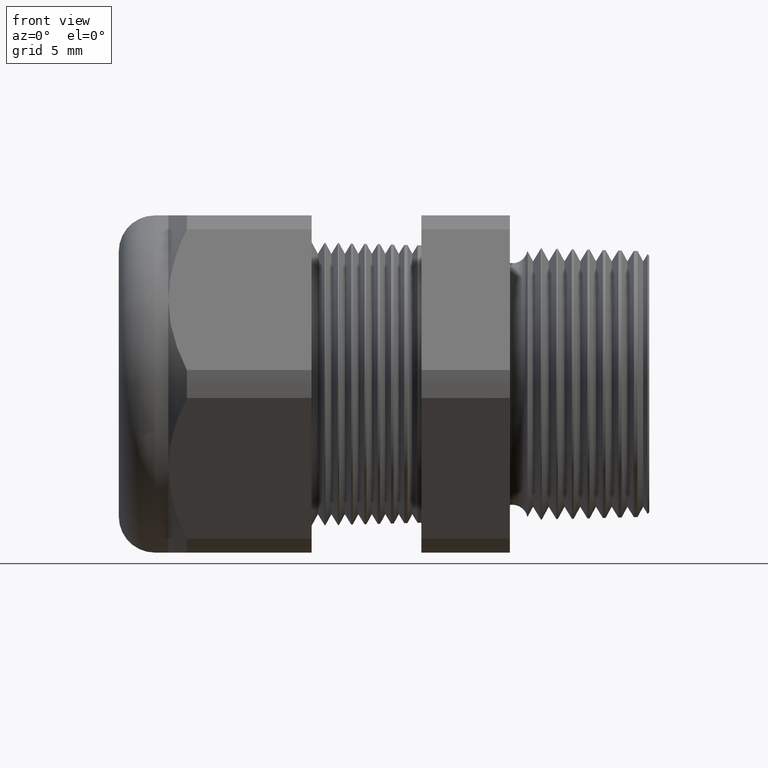
[diagram: clean part render]
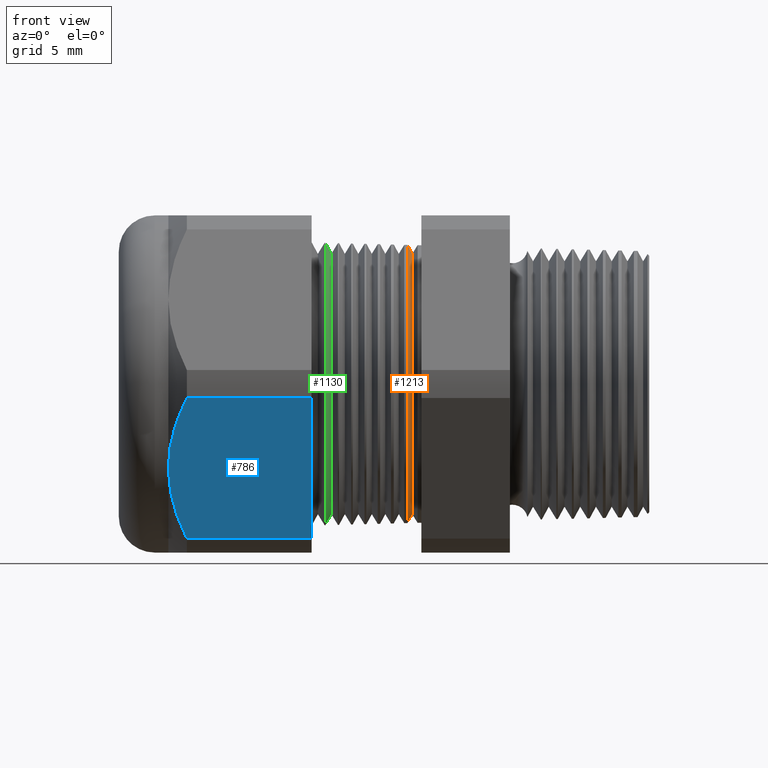
[diagram: same view with three faces highlighted in distinct colors, each labeled with its STEP entity id]
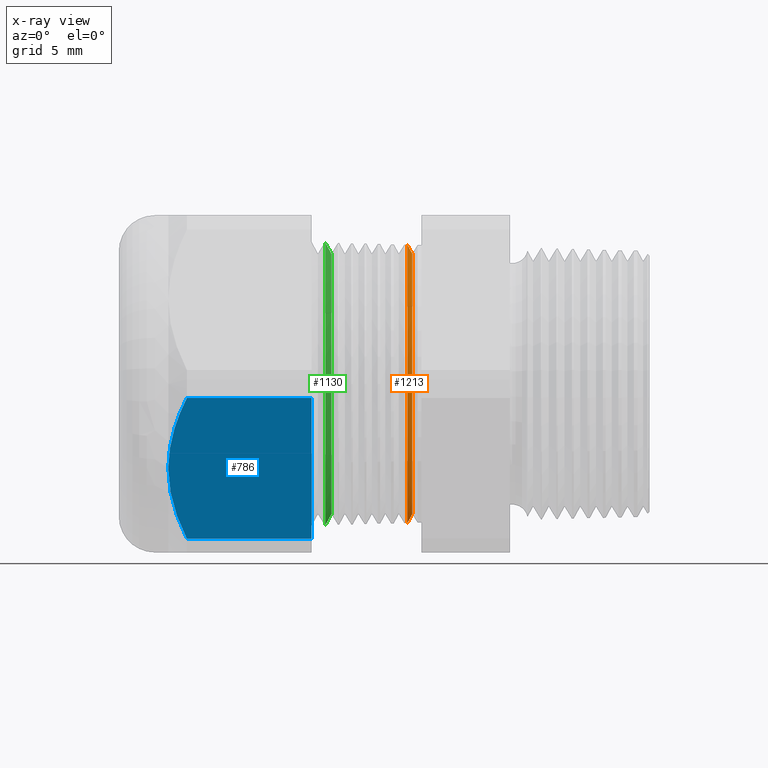
[diagram: x-ray of the same camera — body ghosted, the three highlighted faces saturated]
A machine part, front view with three faces highlighted in distinct colors.
The next image is the same camera in x-ray (body ghosted, the three faces saturated) — at least one of them is partly hidden behind the body in this view.
Their STEP definitions:

[orange] entity #1213 — the highlighted conical surface has half-angle 61.5 deg.
#178 = VERTEX_POINT ( 'NONE', #1792 ) ;
#187 = EDGE_CURVE ( 'NONE', #731, #178, #1836, .T. ) ;
#378 = EDGE_CURVE ( 'NONE', #178, #621, #2168, .T. ) ;
#621 = VERTEX_POINT ( 'NONE', #2649 ) ;
#622 = EDGE_CURVE ( 'NONE', #730, #621, #2648, .T. ) ;
#730 = VERTEX_POINT ( 'NONE', #2835 ) ;
#731 = VERTEX_POINT ( 'NONE', #2834 ) ;
#1195 = ORIENTED_EDGE ( 'NONE', *, *, #378, .T. ) ;
#1213 = ADVANCED_FACE ( 'NONE', ( #3613 ), #3673, .T. ) ;
#1214 = EDGE_LOOP ( 'NONE', ( #1215, #1216, #1218, #1195 ) ) ;
#1215 = ORIENTED_EDGE ( 'NONE', *, *, #622, .F. ) ;
#1216 = ORIENTED_EDGE ( 'NONE', *, *, #1217, .F. ) ;
#1217 = EDGE_CURVE ( 'NONE', #731, #730, #3667, .T. ) ;
#1218 = ORIENTED_EDGE ( 'NONE', *, *, #187, .T. ) ;
#1792 = CARTESIAN_POINT ( 'NONE',  ( -0.5378373418484120300, 0.0000000000000000000, 0.3094216445542644600 ) ) ;
#1833 = DIRECTION ( 'NONE',  ( -0.4771587602596195100, 0.0000000000000000000, 0.8788171126619593900 ) ) ;
#1834 = VECTOR ( 'NONE', #1833, 39.37007874015748100 ) ;
#1835 = CARTESIAN_POINT ( 'NONE',  ( -0.5408661417322834200, 0.0000000000000000000, 0.3150000000000000000 ) ) ;
#1836 = LINE ( 'NONE', #1835, #1834 ) ;
#2164 = DIRECTION ( 'NONE',  ( 0.0000000000000000000, 0.0000000000000000000, 1.000000000000000000 ) ) ;
#2165 = DIRECTION ( 'NONE',  ( 1.000000000000000000, 0.0000000000000000000, 0.0000000000000000000 ) ) ;
#2166 = CARTESIAN_POINT ( 'NONE',  ( -0.5378373418484120300, 0.0000000000000000000, 0.0000000000000000000 ) ) ;
#2167 = AXIS2_PLACEMENT_3D ( 'NONE', #2166, #2165, #2164 ) ;
#2168 = CIRCLE ( 'NONE', #2167, 0.3094216445542644600 ) ;
#2645 = DIRECTION ( 'NONE',  ( -0.4771587602596195100, 1.076240564057387400E-016, -0.8788171126619593900 ) ) ;
#2646 = VECTOR ( 'NONE', #2645, 39.37007874015748100 ) ;
#2647 = CARTESIAN_POINT ( 'NONE',  ( -0.5408661417322834200, 3.857637417314162700E-017, -0.3150000000000000000 ) ) ;
#2648 = LINE ( 'NONE', #2647, #2646 ) ;
#2649 = CARTESIAN_POINT ( 'NONE',  ( -0.5378373418484120300, 3.790446904611246800E-017, -0.3094216445542644600 ) ) ;
#2834 = CARTESIAN_POINT ( 'NONE',  ( -0.5270917547981793800, 0.0000000000000000000, 0.2896307351718083200 ) ) ;
#2835 = CARTESIAN_POINT ( 'NONE',  ( -0.5270917547981793800, 3.668137896765698900E-017, -0.2896307351718083200 ) ) ;
#3613 = FACE_OUTER_BOUND ( 'NONE', #1214, .T. ) ;
#3664 = DIRECTION ( 'NONE',  ( 0.0000000000000000000, 0.0000000000000000000, -1.000000000000000000 ) ) ;
#3665 = DIRECTION ( 'NONE',  ( 1.000000000000000000, 0.0000000000000000000, 0.0000000000000000000 ) ) ;
#3666 = AXIS2_PLACEMENT_3D ( 'NONE', #3672, #3665, #3664 ) ;
#3667 = CIRCLE ( 'NONE', #3666, 0.2896307351718083200 ) ;
#3668 = DIRECTION ( 'NONE',  ( 0.0000000000000000000, 0.0000000000000000000, 1.000000000000000000 ) ) ;
#3669 = DIRECTION ( 'NONE',  ( -1.000000000000000000, 0.0000000000000000000, 0.0000000000000000000 ) ) ;
#3670 = CARTESIAN_POINT ( 'NONE',  ( -0.5408661417322834200, 0.0000000000000000000, 0.0000000000000000000 ) ) ;
#3671 = AXIS2_PLACEMENT_3D ( 'NONE', #3670, #3669, #3668 ) ;
#3672 = CARTESIAN_POINT ( 'NONE',  ( -0.5270917547981793800, 0.0000000000000000000, 0.0000000000000000000 ) ) ;
#3673 = CONICAL_SURFACE ( 'NONE', #3671, 0.3150000000000000000, 1.073377489976500100 ) ;

[blue] entity #786 — the highlighted planar face has unit normal (0, -0.866, -0.5).
#761 = ORIENTED_EDGE ( 'NONE', *, *, #762, .T. ) ;
#762 = EDGE_CURVE ( 'NONE', #780, #763, #2940, .T. ) ;
#763 = VERTEX_POINT ( 'NONE', #2939 ) ;
#764 = ORIENTED_EDGE ( 'NONE', *, *, #765, .T. ) ;
#765 = EDGE_CURVE ( 'NONE', #763, #766, #2930, .T. ) ;
#766 = VERTEX_POINT ( 'NONE', #2929 ) ;
#767 = ORIENTED_EDGE ( 'NONE', *, *, #768, .F. ) ;
#768 = EDGE_CURVE ( 'NONE', #769, #766, #2922, .T. ) ;
#769 = VERTEX_POINT ( 'NONE', #2918 ) ;
#770 = ORIENTED_EDGE ( 'NONE', *, *, #771, .F. ) ;
#771 = EDGE_CURVE ( 'NONE', #783, #769, #2917, .T. ) ;
#780 = VERTEX_POINT ( 'NONE', #2952 ) ;
#782 = EDGE_CURVE ( 'NONE', #783, #780, #2951, .T. ) ;
#783 = VERTEX_POINT ( 'NONE', #2947 ) ;
#786 = ADVANCED_FACE ( 'NONE', ( #2941 ), #3002, .T. ) ;
#787 = EDGE_LOOP ( 'NONE', ( #788, #761, #764, #767, #770 ) ) ;
#788 = ORIENTED_EDGE ( 'NONE', *, *, #782, .T. ) ;
#2914 = DIRECTION ( 'NONE',  ( 0.0000000000000000000, 0.5000000000000002200, -0.8660254037844384900 ) ) ;
#2915 = VECTOR ( 'NONE', #2914, 39.37007874015748900 ) ;
#2916 = CARTESIAN_POINT ( 'NONE',  ( -0.7508661417322833900, -0.2460095264191644600, -0.3238990010960492400 ) ) ;
#2917 = LINE ( 'NONE', #2916, #2915 ) ;
#2918 = CARTESIAN_POINT ( 'NONE',  ( -0.7508661417322833900, -0.2344281053908202100, -0.3439586107409880500 ) ) ;
#2919 = DIRECTION ( 'NONE',  ( -1.000000000000000000, 0.0000000000000000000, 0.0000000000000000000 ) ) ;
#2920 = VECTOR ( 'NONE', #2919, 39.37007874015748100 ) ;
#2921 = CARTESIAN_POINT ( 'NONE',  ( 0.0000000000000000000, -0.2344281053908202100, -0.3439586107409880500 ) ) ;
#2922 = LINE ( 'NONE', #2921, #2920 ) ;
#2923 = CARTESIAN_POINT ( 'NONE',  ( -1.028513779527559200, -0.2344281053908201800, -0.3439586107409879900 ) ) ;
#2924 = CARTESIAN_POINT ( 'NONE',  ( -1.041003202145915500, -0.2488160174420975000, -0.3190380160533434200 ) ) ;
#2925 = CARTESIAN_POINT ( 'NONE',  ( -1.051459219999150200, -0.2636869420682234100, -0.2932808190453660100 ) ) ;
#2926 = CARTESIAN_POINT ( 'NONE',  ( -1.065817769005222800, -0.2938118100972367800, -0.2411030170478076800 ) ) ;
#2927 = CARTESIAN_POINT ( 'NONE',  ( -1.069763779527558500, -0.3091297520026593500, -0.2145715634002272300 ) ) ;
#2928 = CARTESIAN_POINT ( 'NONE',  ( -1.069763779527559200, -0.3247595264191645600, -0.1875000000000001900 ) ) ;
#2929 = CARTESIAN_POINT ( 'NONE',  ( -1.028513779527559200, -0.2344281053908201800, -0.3439586107409879900 ) ) ;
#2930 = B_SPLINE_CURVE_WITH_KNOTS ( 'NONE', 3,
 ( #2928, #2927, #2926, #2925, #2924, #2923 ),
 .UNSPECIFIED., .F., .F.,
 ( 4, 2, 4 ),
 ( 0.004709976344604660200, 0.007063225540252129700, 0.009416474735899599300 ),
 .UNSPECIFIED. ) ;
#2931 = CARTESIAN_POINT ( 'NONE',  ( -1.069763779527559200, -0.3247595264191645600, -0.1875000000000001900 ) ) ;
#2932 = CARTESIAN_POINT ( 'NONE',  ( -1.069763779527559000, -0.3325797762507456400, -0.1739549299638197500 ) ) ;
#2933 = CARTESIAN_POINT ( 'NONE',  ( -1.068759730589041500, -0.3404835130999904200, -0.1602652561712736600 ) ) ;
#2934 = CARTESIAN_POINT ( 'NONE',  ( -1.064926254644834400, -0.3559303281390046000, -0.1335105877085819800 ) ) ;
#2935 = CARTESIAN_POINT ( 'NONE',  ( -1.062104445229484800, -0.3635409529853223500, -0.1203285987974131200 ) ) ;
#2936 = CARTESIAN_POINT ( 'NONE',  ( -1.051298346633054100, -0.3860811521420284800, -0.08128782864527751800 ) ) ;
#2937 = CARTESIAN_POINT ( 'NONE',  ( -1.040987746498826900, -0.4007208404219565500, -0.05593114473747132200 ) ) ;
#2938 = CARTESIAN_POINT ( 'NONE',  ( -1.028513779527559200, -0.4150909474475088000, -0.03104138925901237700 ) ) ;
#2939 = CARTESIAN_POINT ( 'NONE',  ( -1.069763779527559200, -0.3247595264191645600, -0.1875000000000001900 ) ) ;
#2940 = B_SPLINE_CURVE_WITH_KNOTS ( 'NONE', 3,
 ( #2938, #2937, #2936, #2935, #2934, #2933, #2932, #2931 ),
 .UNSPECIFIED., .F., .F.,
 ( 4, 2, 2, 4 ),
 ( 2.483253706013444600E-007, 0.002355112334987631300, 0.003532544339796146400, 0.004709976344604660200 ),
 .UNSPECIFIED. ) ;
#2941 = FACE_OUTER_BOUND ( 'NONE', #787, .T. ) ;
#2947 = CARTESIAN_POINT ( 'NONE',  ( -0.7508661417322833900, -0.4150909474475088000, -0.03104138925901237000 ) ) ;
#2948 = DIRECTION ( 'NONE',  ( -1.000000000000000000, 0.0000000000000000000, 0.0000000000000000000 ) ) ;
#2949 = VECTOR ( 'NONE', #2948, 39.37007874015748100 ) ;
#2950 = CARTESIAN_POINT ( 'NONE',  ( 0.0000000000000000000, -0.4150909474475088000, -0.03104138925901237000 ) ) ;
#2951 = LINE ( 'NONE', #2950, #2949 ) ;
#2952 = CARTESIAN_POINT ( 'NONE',  ( -1.028513779527559200, -0.4150909474475088000, -0.03104138925901237700 ) ) ;
#2998 = DIRECTION ( 'NONE',  ( 0.0000000000000000000, 0.5000000000000002200, -0.8660254037844384900 ) ) ;
#2999 = DIRECTION ( 'NONE',  ( 0.0000000000000000000, -0.8660254037844386000, -0.5000000000000003300 ) ) ;
#3000 = CARTESIAN_POINT ( 'NONE',  ( 0.0000000000000000000, -0.2344281053908202900, -0.3439586107409879900 ) ) ;
#3001 = AXIS2_PLACEMENT_3D ( 'NONE', #3000, #2999, #2998 ) ;
#3002 = PLANE ( 'NONE',  #3001 ) ;

[green] entity #1130 — the highlighted conical surface has half-angle 61.5 deg.
#117 = EDGE_CURVE ( 'NONE', #399, #1422, #1717, .T. ) ;
#399 = VERTEX_POINT ( 'NONE', #2244 ) ;
#599 = VERTEX_POINT ( 'NONE', #2629 ) ;
#600 = VERTEX_POINT ( 'NONE', #2628 ) ;
#1130 = ADVANCED_FACE ( 'NONE', ( #3528 ), #3523, .T. ) ;
#1131 = EDGE_LOOP ( 'NONE', ( #1132, #1133, #1135, #1136 ) ) ;
#1132 = ORIENTED_EDGE ( 'NONE', *, *, #1421, .F. ) ;
#1133 = ORIENTED_EDGE ( 'NONE', *, *, #1134, .F. ) ;
#1134 = EDGE_CURVE ( 'NONE', #599, #600, #3517, .T. ) ;
#1135 = ORIENTED_EDGE ( 'NONE', *, *, #1343, .T. ) ;
#1136 = ORIENTED_EDGE ( 'NONE', *, *, #117, .T. ) ;
#1343 = EDGE_CURVE ( 'NONE', #599, #399, #3882, .T. ) ;
#1421 = EDGE_CURVE ( 'NONE', #600, #1422, #4046, .T. ) ;
#1422 = VERTEX_POINT ( 'NONE', #4038 ) ;
#1713 = DIRECTION ( 'NONE',  ( 0.0000000000000000000, 0.0000000000000000000, 1.000000000000000000 ) ) ;
#1714 = DIRECTION ( 'NONE',  ( 1.000000000000000000, 0.0000000000000000000, 0.0000000000000000000 ) ) ;
#1715 = CARTESIAN_POINT ( 'NONE',  ( -0.7204334560345875300, 0.0000000000000000000, 0.0000000000000000000 ) ) ;
#1716 = AXIS2_PLACEMENT_3D ( 'NONE', #1715, #1714, #1713 ) ;
#1717 = CIRCLE ( 'NONE', #1716, 0.3142030920791806200 ) ;
#2244 = CARTESIAN_POINT ( 'NONE',  ( -0.7204334560345875300, 0.0000000000000000000, 0.3142030920791806200 ) ) ;
#2628 = CARTESIAN_POINT ( 'NONE',  ( -0.7070917547981794300, 3.697415818799097200E-017, -0.2896307351718083200 ) ) ;
#2629 = CARTESIAN_POINT ( 'NONE',  ( -0.7070917547981794300, 0.0000000000000000000, 0.2896307351718083200 ) ) ;
#3515 = DIRECTION ( 'NONE',  ( 1.000000000000000000, 0.0000000000000000000, 0.0000000000000000000 ) ) ;
#3516 = AXIS2_PLACEMENT_3D ( 'NONE', #3522, #3515, #3578 ) ;
#3517 = CIRCLE ( 'NONE', #3516, 0.2896307351718083200 ) ;
#3518 = DIRECTION ( 'NONE',  ( 0.0000000000000000000, 0.0000000000000000000, 1.000000000000000000 ) ) ;
#3519 = DIRECTION ( 'NONE',  ( -1.000000000000000000, 0.0000000000000000000, 0.0000000000000000000 ) ) ;
#3520 = CARTESIAN_POINT ( 'NONE',  ( -0.7208661417322834700, 0.0000000000000000000, 0.0000000000000000000 ) ) ;
#3521 = AXIS2_PLACEMENT_3D ( 'NONE', #3520, #3519, #3518 ) ;
#3522 = CARTESIAN_POINT ( 'NONE',  ( -0.7070917547981794300, 0.0000000000000000000, 0.0000000000000000000 ) ) ;
#3523 = CONICAL_SURFACE ( 'NONE', #3521, 0.3150000000000000000, 1.073377489976500100 ) ;
#3528 = FACE_OUTER_BOUND ( 'NONE', #1131, .T. ) ;
#3578 = DIRECTION ( 'NONE',  ( 0.0000000000000000000, 0.0000000000000000000, -1.000000000000000000 ) ) ;
#3879 = DIRECTION ( 'NONE',  ( -0.4771587602596195100, 0.0000000000000000000, 0.8788171126619593900 ) ) ;
#3880 = VECTOR ( 'NONE', #3879, 39.37007874015748100 ) ;
#3881 = CARTESIAN_POINT ( 'NONE',  ( -0.7208661417322834700, 0.0000000000000000000, 0.3150000000000000000 ) ) ;
#3882 = LINE ( 'NONE', #3881, #3880 ) ;
#4038 = CARTESIAN_POINT ( 'NONE',  ( -0.7204334560345875300, 3.848130659775144900E-017, -0.3142030920791806200 ) ) ;
#4039 = DIRECTION ( 'NONE',  ( -0.4771587602596195100, 1.076240564057387400E-016, -0.8788171126619593900 ) ) ;
#4040 = VECTOR ( 'NONE', #4039, 39.37007874015748100 ) ;
#4041 = CARTESIAN_POINT ( 'NONE',  ( -0.7208661417322834700, 3.857637417314162700E-017, -0.3150000000000000000 ) ) ;
#4046 = LINE ( 'NONE', #4041, #4040 ) ;